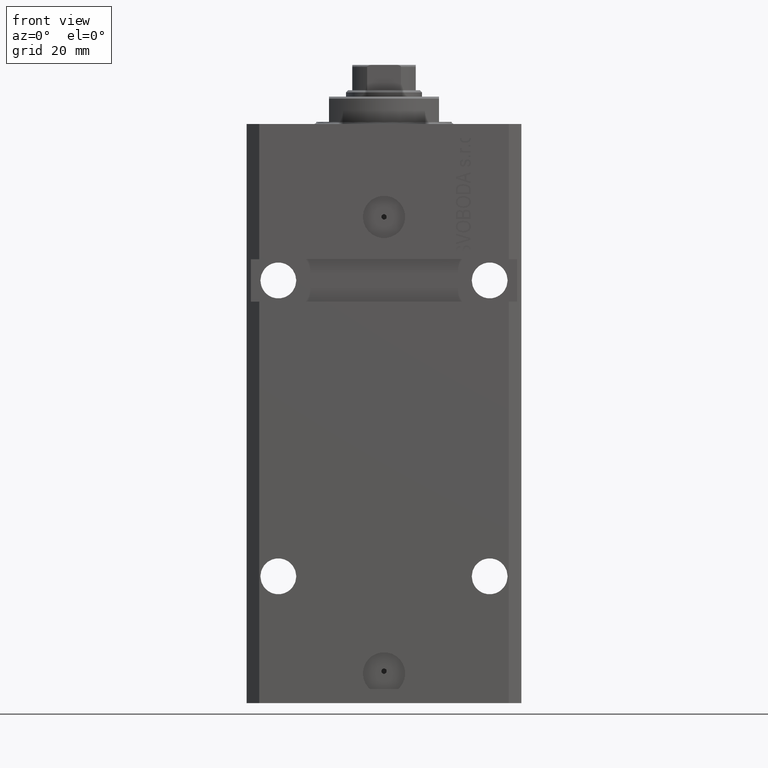
[diagram: clean part render]
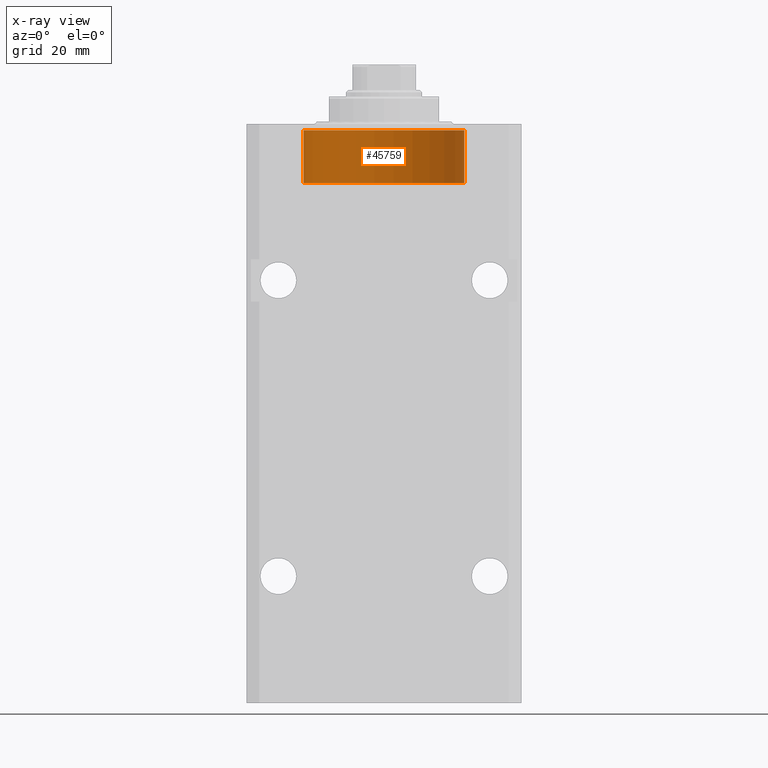
[diagram: x-ray — body ghosted, one internal face saturated and labeled with its STEP entity id]
A machine part, front view, then the same camera in x-ray: the body is ghosted and one INTERNAL B-rep face — a face not visible from any outside direction — is saturated and labeled: STEP entity #45759.
In plain terms, the highlighted cylindrical surface (partial cylindrical patch) has radius 19 mm, axis along (0, -0, 1).
Its self-contained STEP definition (entity closure, byte-faithful):
#758 = CARTESIAN_POINT ( 'NONE',  ( 19.00000000000000000, 2.326828918379970970E-15, 1.500000000000004885 ) ) ;
#1504 = VERTEX_POINT ( 'NONE', #21997 ) ;
#3022 = CIRCLE ( 'NONE', #43510, 19.00000000000000000 ) ;
#5675 = ORIENTED_EDGE ( 'NONE', *, *, #39198, .T. ) ;
#10078 = CARTESIAN_POINT ( 'NONE',  ( 0.000000000000000000, 0.000000000000000000, 1.500000000000004885 ) ) ;
#10751 = FACE_OUTER_BOUND ( 'NONE', #48075, .T. ) ;
#10831 = DIRECTION ( 'NONE',  ( -0.000000000000000000, -0.000000000000000000, -1.000000000000000000 ) ) ;
#11783 = AXIS2_PLACEMENT_3D ( 'NONE', #40502, #21990, #36850 ) ;
#15100 = ORIENTED_EDGE ( 'NONE', *, *, #29594, .F. ) ;
#16407 = VECTOR ( 'NONE', #10831, 1000.000000000000000 ) ;
#16424 = DIRECTION ( 'NONE',  ( 1.000000000000000000, 0.000000000000000000, 0.000000000000000000 ) ) ;
#17234 = EDGE_CURVE ( 'NONE', #19620, #17987, #20952, .T. ) ;
#17818 = DIRECTION ( 'NONE',  ( 1.000000000000000000, 0.000000000000000000, 0.000000000000000000 ) ) ;
#17987 = VERTEX_POINT ( 'NONE', #42527 ) ;
#19610 = CIRCLE ( 'NONE', #39092, 19.00000000000000000 ) ;
#19620 = VERTEX_POINT ( 'NONE', #36442 ) ;
#19730 = ORIENTED_EDGE ( 'NONE', *, *, #26996, .T. ) ;
#20952 = LINE ( 'NONE', #28745, #30205 ) ;
#21990 = DIRECTION ( 'NONE',  ( -0.000000000000000000, -0.000000000000000000, -1.000000000000000000 ) ) ;
#21997 = CARTESIAN_POINT ( 'NONE',  ( 19.00000000000000000, 2.326828918379970970E-15, 14.00000000000000000 ) ) ;
#26996 = EDGE_CURVE ( 'NONE', #1504, #31382, #44000, .T. ) ;
#28073 = DIRECTION ( 'NONE',  ( 0.000000000000000000, 0.000000000000000000, 1.000000000000000000 ) ) ;
#28745 = CARTESIAN_POINT ( 'NONE',  ( -19.00000000000000000, 0.000000000000000000, 14.00000000000000000 ) ) ;
#29594 = EDGE_CURVE ( 'NONE', #1504, #19620, #19610, .T. ) ;
#30205 = VECTOR ( 'NONE', #42639, 1000.000000000000000 ) ;
#31382 = VERTEX_POINT ( 'NONE', #758 ) ;
#32463 = CARTESIAN_POINT ( 'NONE',  ( 0.000000000000000000, 0.000000000000000000, 14.00000000000000000 ) ) ;
#35932 = DIRECTION ( 'NONE',  ( -0.000000000000000000, -0.000000000000000000, 1.000000000000000000 ) ) ;
#36140 = CYLINDRICAL_SURFACE ( 'NONE', #11783, 19.00000000000000000 ) ;
#36442 = CARTESIAN_POINT ( 'NONE',  ( -19.00000000000000000, 0.000000000000000000, 14.00000000000000000 ) ) ;
#36850 = DIRECTION ( 'NONE',  ( -1.000000000000000000, 0.000000000000000000, 0.000000000000000000 ) ) ;
#39092 = AXIS2_PLACEMENT_3D ( 'NONE', #32463, #28073, #17818 ) ;
#39198 = EDGE_CURVE ( 'NONE', #31382, #17987, #3022, .T. ) ;
#40502 = CARTESIAN_POINT ( 'NONE',  ( 0.000000000000000000, 0.000000000000000000, 14.00000000000000000 ) ) ;
#42527 = CARTESIAN_POINT ( 'NONE',  ( -19.00000000000000000, 0.000000000000000000, 1.500000000000004885 ) ) ;
#42639 = DIRECTION ( 'NONE',  ( -0.000000000000000000, -0.000000000000000000, -1.000000000000000000 ) ) ;
#43510 = AXIS2_PLACEMENT_3D ( 'NONE', #10078, #35932, #16424 ) ;
#44000 = LINE ( 'NONE', #48125, #16407 ) ;
#44618 = ORIENTED_EDGE ( 'NONE', *, *, #17234, .F. ) ;
#45759 = ADVANCED_FACE ( 'NONE', ( #10751 ), #36140, .T. ) ;
#48075 = EDGE_LOOP ( 'NONE', ( #15100, #19730, #5675, #44618 ) ) ;
#48125 = CARTESIAN_POINT ( 'NONE',  ( 19.00000000000000000, 2.326828918379970970E-15, 14.00000000000000000 ) ) ;